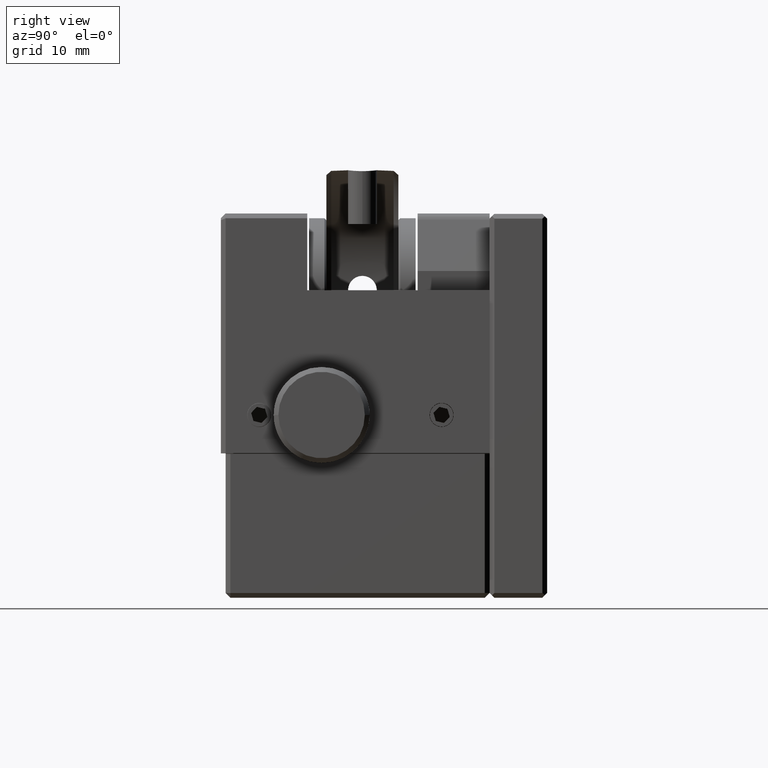
[diagram: clean part render]
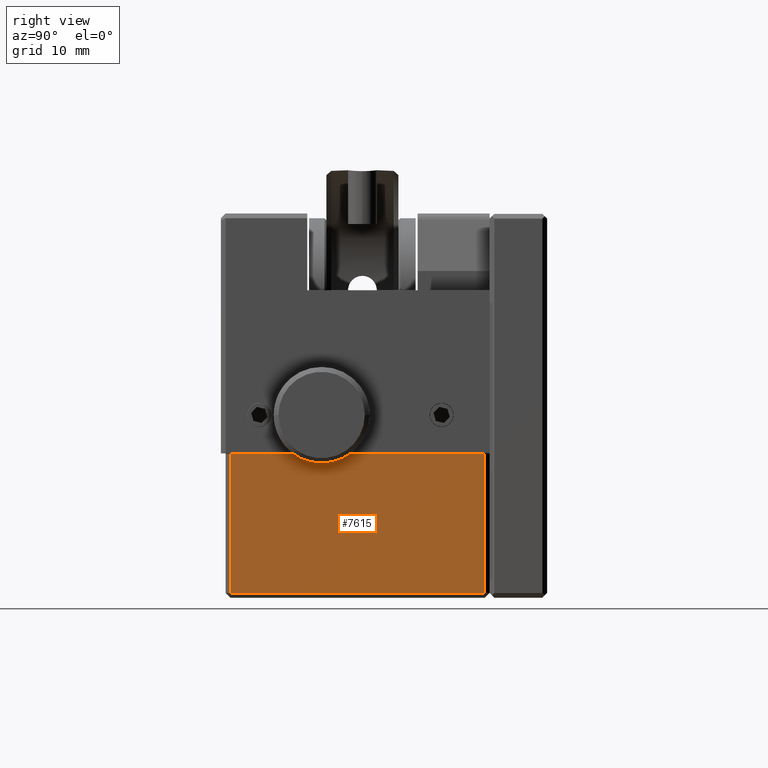
[diagram: same view with one face highlighted and labeled with its STEP entity id]
A machine part, right view. The second image highlights one B-rep face of the part: STEP entity #7615.
In plain terms, the highlighted planar face has unit normal (-1, -0, 0).
Its self-contained STEP definition (entity closure, byte-faithful):
#381 = LINE ( 'NONE', #4119, #672 ) ;
#436 = CARTESIAN_POINT ( 'NONE',  ( 20.00000000000037303, -0.4999999999999836242, -25.03888780438081341 ) ) ;
#672 = VECTOR ( 'NONE', #7865, 1000.000000000000000 ) ;
#891 = CARTESIAN_POINT ( 'NONE',  ( 20.00000000000028777, -26.99999999999999289, -39.53888780438080630 ) ) ;
#1441 = AXIS2_PLACEMENT_3D ( 'NONE', #11982, #3722, #9237 ) ;
#2049 = VERTEX_POINT ( 'NONE', #891 ) ;
#3035 = VECTOR ( 'NONE', #4826, 1000.000000000000000 ) ;
#3290 = EDGE_CURVE ( 'NONE', #3931, #2049, #3487, .T. ) ;
#3487 = LINE ( 'NONE', #9126, #9207 ) ;
#3713 = LINE ( 'NONE', #11187, #4017 ) ;
#3722 = DIRECTION ( 'NONE',  ( -1.000000000000000000, -1.110223024625156787E-16, 7.003656913677027861E-15 ) ) ;
#3846 = VERTEX_POINT ( 'NONE', #10912 ) ;
#3931 = VERTEX_POINT ( 'NONE', #10736 ) ;
#4017 = VECTOR ( 'NONE', #4510, 1000.000000000000000 ) ;
#4119 = CARTESIAN_POINT ( 'NONE',  ( 20.00000000000038725, 3.469446951953614189E-15, -25.03888780438081696 ) ) ;
#4510 = DIRECTION ( 'NONE',  ( 7.003656913677027861E-15, 0.000000000000000000, 1.000000000000000000 ) ) ;
#4826 = DIRECTION ( 'NONE',  ( -7.003656913677027861E-15, -0.000000000000000000, -1.000000000000000000 ) ) ;
#4990 = EDGE_LOOP ( 'NONE', ( #8075, #7140, #7215, #5384 ) ) ;
#5384 = ORIENTED_EDGE ( 'NONE', *, *, #3290, .F. ) ;
#5691 = PLANE ( 'NONE',  #1441 ) ;
#6045 = VERTEX_POINT ( 'NONE', #436 ) ;
#6910 = CARTESIAN_POINT ( 'NONE',  ( 20.00000000000038725, -0.4999999999999970024, -25.03888780438081341 ) ) ;
#7140 = ORIENTED_EDGE ( 'NONE', *, *, #8673, .F. ) ;
#7215 = ORIENTED_EDGE ( 'NONE', *, *, #9371, .F. ) ;
#7615 = ADVANCED_FACE ( 'NONE', ( #9302 ), #5691, .F. ) ;
#7865 = DIRECTION ( 'NONE',  ( -1.110223024625156787E-16, 1.000000000000000000, 7.775621162139400509E-31 ) ) ;
#8075 = ORIENTED_EDGE ( 'NONE', *, *, #9444, .F. ) ;
#8394 = DIRECTION ( 'NONE',  ( 1.110223024625148775E-16, -1.000000000000000000, -1.110223024625164429E-16 ) ) ;
#8673 = EDGE_CURVE ( 'NONE', #3846, #6045, #381, .T. ) ;
#9126 = CARTESIAN_POINT ( 'NONE',  ( 20.00000000000028422, 6.938893903907228378E-15, -39.53888780438080630 ) ) ;
#9207 = VECTOR ( 'NONE', #8394, 1000.000000000000000 ) ;
#9237 = DIRECTION ( 'NONE',  ( 7.003656913677027861E-15, 0.000000000000000000, 1.000000000000000000 ) ) ;
#9302 = FACE_OUTER_BOUND ( 'NONE', #4990, .T. ) ;
#9371 = EDGE_CURVE ( 'NONE', #2049, #3846, #3713, .T. ) ;
#9444 = EDGE_CURVE ( 'NONE', #6045, #3931, #11488, .T. ) ;
#10736 = CARTESIAN_POINT ( 'NONE',  ( 20.00000000000028066, -0.4999999999999937272, -39.53888780438080630 ) ) ;
#10912 = CARTESIAN_POINT ( 'NONE',  ( 20.00000000000036593, -27.00000000000002132, -25.03888780438081696 ) ) ;
#11187 = CARTESIAN_POINT ( 'NONE',  ( 20.00000000000038725, -26.99999999999999289, -25.03888780438081341 ) ) ;
#11488 = LINE ( 'NONE', #6910, #3035 ) ;
#11982 = CARTESIAN_POINT ( 'NONE',  ( 20.00000000000038725, 3.469446951953614189E-15, -25.03888780438081341 ) ) ;